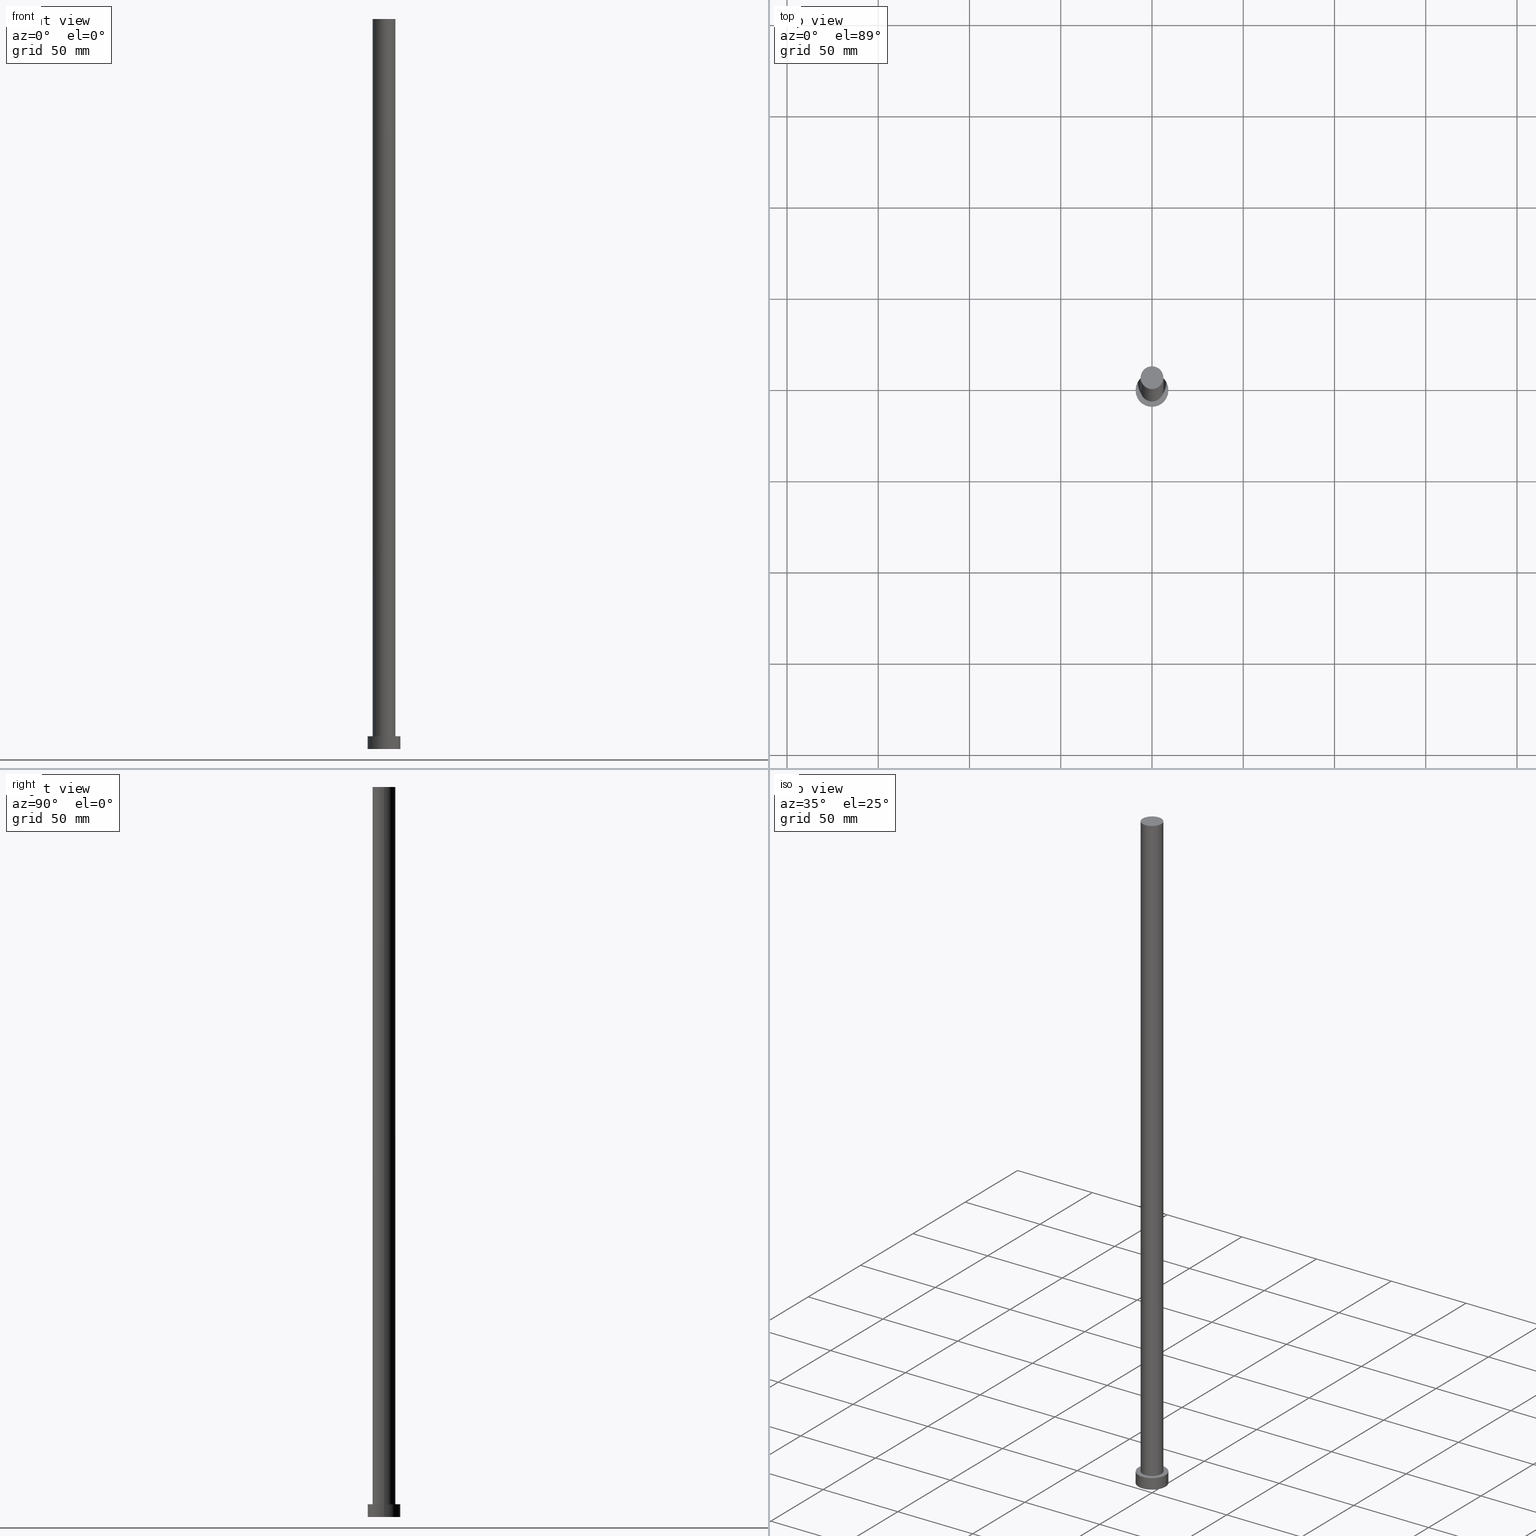
[diagram: canonical four-view strip — front | top / right | iso, engineering-drawing reading convention]
A machine part, canonical four-view strip (front | top / right | iso — engineering-drawing reading convention). The complete STEP part file that produces these views, byte-faithful:
ISO-10303-21;
HEADER;
FILE_DESCRIPTION (( 'STEP AP203' ),
    '1' );
FILE_NAME ('0892.STEP',
    '2023-02-13T11:37:16',
    ( '' ),
    ( '' ),
    'SwSTEP 2.0',
    'SolidWorks 2019',
    '' );
FILE_SCHEMA (( 'CONFIG_CONTROL_DESIGN' ));
ENDSEC;

DATA;
#1 = CARTESIAN_POINT ( 'NONE',  ( 0.000000000000000000, 0.000000000000000000, 400.0000000000000000 ) ) ;
#2 = APPROVAL_ROLE ( '' ) ;
#3 = ADVANCED_FACE ( 'NONE', ( #17 ), #32, .T. ) ;
#4 = VERTEX_POINT ( 'NONE', #13 ) ;
#5 = ORIENTED_EDGE ( 'NONE', *, *, #83, .F. ) ;
#6 = COORDINATED_UNIVERSAL_TIME_OFFSET ( 1, 0, .AHEAD. ) ;
#7 = CIRCLE ( 'NONE', #85, 6.250000000000000000 ) ;
#8 = ORIENTED_EDGE ( 'NONE', *, *, #132, .F. ) ;
#9 = CARTESIAN_POINT ( 'NONE',  ( 0.000000000000000000, 0.000000000000000000, 400.0000000000000000 ) ) ;
#10 = LINE ( 'NONE', #169, #230 ) ;
#11 = VERTEX_POINT ( 'NONE', #220 ) ;
#12 =( LENGTH_UNIT ( ) NAMED_UNIT ( * ) SI_UNIT ( .MILLI., .METRE. ) );
#13 = CARTESIAN_POINT ( 'NONE',  ( 6.250000000000000000, 7.654042494670957606E-16, 400.0000000000000000 ) ) ;
#14 = VECTOR ( 'NONE', #95, 1000.000000000000000 ) ;
#15 = DIRECTION ( 'NONE',  ( 1.000000000000000000, 0.000000000000000000, 0.000000000000000000 ) ) ;
#16 = DIRECTION ( 'NONE',  ( 1.000000000000000000, 0.000000000000000000, 0.000000000000000000 ) ) ;
#17 = FACE_OUTER_BOUND ( 'NONE', #76, .T. ) ;
#18 = AXIS2_PLACEMENT_3D ( 'NONE', #209, #190, #141 ) ;
#19 = COORDINATED_UNIVERSAL_TIME_OFFSET ( 1, 0, .AHEAD. ) ;
#20 =( NAMED_UNIT ( * ) SI_UNIT ( $, .STERADIAN. ) SOLID_ANGLE_UNIT ( ) );
#21 = EDGE_CURVE ( 'NONE', #4, #39, #139, .T. ) ;
#22 = DIRECTION ( 'NONE',  ( 1.000000000000000000, 0.000000000000000000, -0.000000000000000000 ) ) ;
#23 = PERSON ( 'NEUR�EN�', 'NEUR�EN�', 'NEUR�EN�', ('NEUR�EN�'), ('NEUR�EN�'), ('NEUR�EN�') ) ;
#24 = CALENDAR_DATE ( 2023, 13, 2 ) ;
#25 = EDGE_LOOP ( 'NONE', ( #29, #111, #71, #73 ) ) ;
#26 = APPROVAL ( #241, 'NEUR�EN�' ) ;
#27 = PERSON_AND_ORGANIZATION_ROLE ( 'creator' ) ;
#28 = AXIS2_PLACEMENT_3D ( 'NONE', #9, #94, #56 ) ;
#29 = ORIENTED_EDGE ( 'NONE', *, *, #158, .F. ) ;
#30 = DATE_TIME_ROLE ( 'classification_date' ) ;
#31 = AXIS2_PLACEMENT_3D ( 'NONE', #156, #228, #121 ) ;
#32 = PLANE ( 'NONE',  #214 ) ;
#33 = DIRECTION ( 'NONE',  ( 0.000000000000000000, 0.000000000000000000, 1.000000000000000000 ) ) ;
#34 = DIRECTION ( 'NONE',  ( 0.000000000000000000, 0.000000000000000000, 1.000000000000000000 ) ) ;
#35 = CARTESIAN_POINT ( 'NONE',  ( -9.000000000000000000, 0.000000000000000000, 7.000000000000000000 ) ) ;
#36 = DIRECTION ( 'NONE',  ( 0.000000000000000000, 0.000000000000000000, 1.000000000000000000 ) ) ;
#37 = PRODUCT_RELATED_PRODUCT_CATEGORY ( 'detail', '', ( #135 ) ) ;
#38 = AXIS2_PLACEMENT_3D ( 'NONE', #203, #36, #184 ) ;
#39 = VERTEX_POINT ( 'NONE', #137 ) ;
#40 =( NAMED_UNIT ( * ) PLANE_ANGLE_UNIT ( ) SI_UNIT ( $, .RADIAN. ) );
#41 = EDGE_CURVE ( 'NONE', #189, #150, #67, .T. ) ;
#42 = PERSON_AND_ORGANIZATION ( #23, #119 ) ;
#43 = CYLINDRICAL_SURFACE ( 'NONE', #226, 6.250000000000000000 ) ;
#44 = CC_DESIGN_APPROVAL ( #188, ( #151 ) ) ;
#45 = LOCAL_TIME ( 12, 37, 16.00000000000000000, #19 ) ;
#46 = DIRECTION ( 'NONE',  ( 1.000000000000000000, 0.000000000000000000, 0.000000000000000000 ) ) ;
#47 = PLANE ( 'NONE',  #238 ) ;
#48 = CIRCLE ( 'NONE', #133, 6.250000000000000000 ) ;
#49 = ADVANCED_FACE ( 'NONE', ( #96, #254 ), #63, .T. ) ;
#50 = EDGE_LOOP ( 'NONE', ( #113, #60, #199, #245 ) ) ;
#51 = SECURITY_CLASSIFICATION_LEVEL ( 'unclassified' ) ;
#52 = DESIGN_CONTEXT ( 'detailed design', #191, 'design' ) ;
#53 = VECTOR ( 'NONE', #118, 1000.000000000000000 ) ;
#54 = EDGE_LOOP ( 'NONE', ( #8, #201 ) ) ;
#55 = APPROVAL_ROLE ( '' ) ;
#56 = DIRECTION ( 'NONE',  ( 1.000000000000000000, 0.000000000000000000, 0.000000000000000000 ) ) ;
#57 = ADVANCED_FACE ( 'NONE', ( #140 ), #43, .T. ) ;
#58 = ORIENTED_EDGE ( 'NONE', *, *, #88, .T. ) ;
#59 = DIRECTION ( 'NONE',  ( 0.000000000000000000, 0.000000000000000000, 1.000000000000000000 ) ) ;
#60 = ORIENTED_EDGE ( 'NONE', *, *, #61, .T. ) ;
#61 = EDGE_CURVE ( 'NONE', #4, #138, #250, .T. ) ;
#62 = DIRECTION ( 'NONE',  ( -1.000000000000000000, 0.000000000000000000, 0.000000000000000000 ) ) ;
#63 = PLANE ( 'NONE',  #18 ) ;
#64 = AXIS2_PLACEMENT_3D ( 'NONE', #187, #248, #222 ) ;
#65 = DATE_AND_TIME ( #229, #115 ) ;
#66 = CARTESIAN_POINT ( 'NONE',  ( 9.000000000000000000, 1.102182119232617714E-15, 7.000000000000000000 ) ) ;
#67 = CIRCLE ( 'NONE', #38, 9.000000000000000000 ) ;
#68 = ORIENTED_EDGE ( 'NONE', *, *, #21, .T. ) ;
#69 = SHAPE_DEFINITION_REPRESENTATION ( #243, #77 ) ;
#70 = LOCAL_TIME ( 12, 37, 16.00000000000000000, #195 ) ;
#71 = ORIENTED_EDGE ( 'NONE', *, *, #251, .T. ) ;
#72 = APPROVAL_DATE_TIME ( #217, #26 ) ;
#73 = ORIENTED_EDGE ( 'NONE', *, *, #132, .T. ) ;
#74 = CC_DESIGN_DATE_AND_TIME_ASSIGNMENT ( #129, #30, ( #210 ) ) ;
#75 = APPROVAL_PERSON_ORGANIZATION ( #42, #188, #196 ) ;
#76 = EDGE_LOOP ( 'NONE', ( #215, #68 ) ) ;
#77 = ADVANCED_BREP_SHAPE_REPRESENTATION ( '0892', ( #165, #255 ), #163 ) ;
#78 = DIRECTION ( 'NONE',  ( -0.000000000000000000, -0.000000000000000000, -1.000000000000000000 ) ) ;
#79 = LINE ( 'NONE', #35, #14 ) ;
#80 = CYLINDRICAL_SURFACE ( 'NONE', #64, 6.250000000000000000 ) ;
#81 = CARTESIAN_POINT ( 'NONE',  ( 6.250000000000000000, 7.654042494670957606E-16, 400.0000000000000000 ) ) ;
#82 = DIRECTION ( 'NONE',  ( 0.000000000000000000, 0.000000000000000000, 1.000000000000000000 ) ) ;
#83 = EDGE_CURVE ( 'NONE', #39, #4, #99, .T. ) ;
#84 = DIRECTION ( 'NONE',  ( -1.000000000000000000, 0.000000000000000000, 0.000000000000000000 ) ) ;
#85 = AXIS2_PLACEMENT_3D ( 'NONE', #186, #33, #15 ) ;
#86 = PERSON_AND_ORGANIZATION_ROLE ( 'design_owner' ) ;
#87 = DATE_AND_TIME ( #24, #70 ) ;
#88 = EDGE_CURVE ( 'NONE', #177, #11, #90, .T. ) ;
#89 = PERSON_AND_ORGANIZATION ( #23, #119 ) ;
#90 = CIRCLE ( 'NONE', #124, 9.000000000000000000 ) ;
#91 = PERSON_AND_ORGANIZATION ( #23, #119 ) ;
#92 = ORIENTED_EDGE ( 'NONE', *, *, #224, .T. ) ;
#93 = EDGE_LOOP ( 'NONE', ( #109, #239 ) ) ;
#94 = DIRECTION ( 'NONE',  ( 0.000000000000000000, 0.000000000000000000, 1.000000000000000000 ) ) ;
#95 = DIRECTION ( 'NONE',  ( -0.000000000000000000, -0.000000000000000000, -1.000000000000000000 ) ) ;
#96 = FACE_BOUND ( 'NONE', #93, .T. ) ;
#97 = DIRECTION ( 'NONE',  ( -0.000000000000000000, -0.000000000000000000, -1.000000000000000000 ) ) ;
#98 = CARTESIAN_POINT ( 'NONE',  ( -6.250000000000000000, 0.000000000000000000, 7.000000000000000000 ) ) ;
#99 = CIRCLE ( 'NONE', #108, 6.250000000000000000 ) ;
#100 = FACE_OUTER_BOUND ( 'NONE', #117, .T. ) ;
#101 = APPLICATION_PROTOCOL_DEFINITION ( 'international standard', 'config_control_design', 1994, #191 ) ;
#102 = DIRECTION ( 'NONE',  ( -0.000000000000000000, -0.000000000000000000, -1.000000000000000000 ) ) ;
#103 = LOCAL_TIME ( 12, 37, 16.00000000000000000, #180 ) ;
#104 = PERSON_AND_ORGANIZATION_ROLE ( 'classification_officer' ) ;
#105 = PERSON_AND_ORGANIZATION ( #23, #119 ) ;
#106 = CC_DESIGN_PERSON_AND_ORGANIZATION_ASSIGNMENT ( #105, #107, ( #151 ) ) ;
#107 = PERSON_AND_ORGANIZATION_ROLE ( 'design_supplier' ) ;
#108 = AXIS2_PLACEMENT_3D ( 'NONE', #211, #160, #46 ) ;
#109 = ORIENTED_EDGE ( 'NONE', *, *, #224, .F. ) ;
#110 = ADVANCED_FACE ( 'NONE', ( #100 ), #173, .T. ) ;
#111 = ORIENTED_EDGE ( 'NONE', *, *, #41, .F. ) ;
#112 = CARTESIAN_POINT ( 'NONE',  ( 9.000000000000000000, 1.102182119232617714E-15, 0.000000000000000000 ) ) ;
#113 = ORIENTED_EDGE ( 'NONE', *, *, #21, .F. ) ;
#114 = CC_DESIGN_DATE_AND_TIME_ASSIGNMENT ( #87, #237, ( #164 ) ) ;
#115 = LOCAL_TIME ( 12, 37, 16.00000000000000000, #161 ) ;
#116 = CARTESIAN_POINT ( 'NONE',  ( 0.000000000000000000, 0.000000000000000000, 7.000000000000000000 ) ) ;
#117 = EDGE_LOOP ( 'NONE', ( #145, #216, #58, #130 ) ) ;
#118 = DIRECTION ( 'NONE',  ( -0.000000000000000000, -0.000000000000000000, -1.000000000000000000 ) ) ;
#119 = ORGANIZATION ( 'NEUR�EN�', 'NEUR�EN�', '' ) ;
#120 = APPROVAL ( #253, 'NEUR�EN�' ) ;
#121 = DIRECTION ( 'NONE',  ( 1.000000000000000000, 0.000000000000000000, 0.000000000000000000 ) ) ;
#122 = MECHANICAL_CONTEXT ( 'NONE', #236, 'mechanical' ) ;
#123 = CARTESIAN_POINT ( 'NONE',  ( 0.000000000000000000, 0.000000000000000000, 0.000000000000000000 ) ) ;
#124 = AXIS2_PLACEMENT_3D ( 'NONE', #233, #174, #192 ) ;
#125 = CC_DESIGN_SECURITY_CLASSIFICATION ( #210, ( #151 ) ) ;
#126 = DATE_AND_TIME ( #172, #45 ) ;
#127 = CC_DESIGN_PERSON_AND_ORGANIZATION_ASSIGNMENT ( #89, #162, ( #164 ) ) ;
#128 = AXIS2_PLACEMENT_3D ( 'NONE', #116, #225, #136 ) ;
#129 = DATE_AND_TIME ( #240, #103 ) ;
#130 = ORIENTED_EDGE ( 'NONE', *, *, #251, .F. ) ;
#131 = PERSON_AND_ORGANIZATION ( #23, #119 ) ;
#132 = EDGE_CURVE ( 'NONE', #11, #177, #148, .T. ) ;
#133 = AXIS2_PLACEMENT_3D ( 'NONE', #155, #59, #16 ) ;
#134 = APPROVAL_PERSON_ORGANIZATION ( #131, #26, #55 ) ;
#135 = PRODUCT ( '0892', '0892', '', ( #122 ) ) ;
#136 = DIRECTION ( 'NONE',  ( 1.000000000000000000, 0.000000000000000000, 0.000000000000000000 ) ) ;
#137 = CARTESIAN_POINT ( 'NONE',  ( -6.250000000000000000, 0.000000000000000000, 400.0000000000000000 ) ) ;
#138 = VERTEX_POINT ( 'NONE', #231 ) ;
#139 = CIRCLE ( 'NONE', #28, 6.250000000000000000 ) ;
#140 = FACE_OUTER_BOUND ( 'NONE', #50, .T. ) ;
#141 = DIRECTION ( 'NONE',  ( 1.000000000000000000, 0.000000000000000000, -0.000000000000000000 ) ) ;
#142 = VECTOR ( 'NONE', #143, 1000.000000000000000 ) ;
#143 = DIRECTION ( 'NONE',  ( -0.000000000000000000, -0.000000000000000000, -1.000000000000000000 ) ) ;
#144 = PERSON_AND_ORGANIZATION ( #23, #119 ) ;
#145 = ORIENTED_EDGE ( 'NONE', *, *, #247, .F. ) ;
#146 = CC_DESIGN_PERSON_AND_ORGANIZATION_ASSIGNMENT ( #147, #104, ( #210 ) ) ;
#147 = PERSON_AND_ORGANIZATION ( #23, #119 ) ;
#148 = CIRCLE ( 'NONE', #31, 9.000000000000000000 ) ;
#149 = CC_DESIGN_PERSON_AND_ORGANIZATION_ASSIGNMENT ( #91, #27, ( #151 ) ) ;
#150 = VERTEX_POINT ( 'NONE', #66 ) ;
#151 = PRODUCT_DEFINITION_FORMATION_WITH_SPECIFIED_SOURCE ( 'LIBOVOLN�', '', #135, .NOT_KNOWN. ) ;
#152 = DIRECTION ( 'NONE',  ( 1.000000000000000000, 0.000000000000000000, -0.000000000000000000 ) ) ;
#153 = CYLINDRICAL_SURFACE ( 'NONE', #154, 9.000000000000000000 ) ;
#154 = AXIS2_PLACEMENT_3D ( 'NONE', #170, #78, #244 ) ;
#155 = CARTESIAN_POINT ( 'NONE',  ( 0.000000000000000000, 0.000000000000000000, 7.000000000000000000 ) ) ;
#156 = CARTESIAN_POINT ( 'NONE',  ( 0.000000000000000000, 0.000000000000000000, 0.000000000000000000 ) ) ;
#157 = CARTESIAN_POINT ( 'NONE',  ( 0.000000000000000000, 0.000000000000000000, 7.000000000000000000 ) ) ;
#158 = EDGE_CURVE ( 'NONE', #150, #177, #208, .T. ) ;
#159 = APPROVAL_DATE_TIME ( #65, #120 ) ;
#160 = DIRECTION ( 'NONE',  ( 0.000000000000000000, 0.000000000000000000, 1.000000000000000000 ) ) ;
#161 = COORDINATED_UNIVERSAL_TIME_OFFSET ( 1, 0, .AHEAD. ) ;
#162 = PERSON_AND_ORGANIZATION_ROLE ( 'creator' ) ;
#163 =( GEOMETRIC_REPRESENTATION_CONTEXT ( 3 ) GLOBAL_UNCERTAINTY_ASSIGNED_CONTEXT ( ( #221 ) ) GLOBAL_UNIT_ASSIGNED_CONTEXT ( ( #12, #40, #20 ) ) REPRESENTATION_CONTEXT ( 'NONE', 'WORKASPACE' ) );
#164 = PRODUCT_DEFINITION ( 'NEZN�M�', '', #151, #52 ) ;
#165 = MANIFOLD_SOLID_BREP ( 'P�idat vysunut�m3', #246 ) ;
#166 = VERTEX_POINT ( 'NONE', #98 ) ;
#167 = ADVANCED_FACE ( 'NONE', ( #212 ), #47, .F. ) ;
#168 = EDGE_LOOP ( 'NONE', ( #182, #197 ) ) ;
#169 = CARTESIAN_POINT ( 'NONE',  ( -6.250000000000000000, 0.000000000000000000, 400.0000000000000000 ) ) ;
#170 = CARTESIAN_POINT ( 'NONE',  ( 0.000000000000000000, 0.000000000000000000, 7.000000000000000000 ) ) ;
#171 = CARTESIAN_POINT ( 'NONE',  ( 9.000000000000000000, 1.102182119232617714E-15, 7.000000000000000000 ) ) ;
#172 = CALENDAR_DATE ( 2023, 13, 2 ) ;
#173 = CYLINDRICAL_SURFACE ( 'NONE', #185, 9.000000000000000000 ) ;
#174 = DIRECTION ( 'NONE',  ( 0.000000000000000000, 0.000000000000000000, 1.000000000000000000 ) ) ;
#175 = DIRECTION ( 'NONE',  ( 1.000000000000000000, 0.000000000000000000, 0.000000000000000000 ) ) ;
#176 = APPROVAL_PERSON_ORGANIZATION ( #144, #120, #2 ) ;
#177 = VERTEX_POINT ( 'NONE', #112 ) ;
#178 = ADVANCED_FACE ( 'NONE', ( #249 ), #80, .T. ) ;
#179 = CC_DESIGN_APPROVAL ( #120, ( #164 ) ) ;
#180 = COORDINATED_UNIVERSAL_TIME_OFFSET ( 1, 0, .AHEAD. ) ;
#181 = CARTESIAN_POINT ( 'NONE',  ( 0.000000000000000000, 0.000000000000000000, 400.0000000000000000 ) ) ;
#182 = ORIENTED_EDGE ( 'NONE', *, *, #41, .T. ) ;
#183 = ADVANCED_FACE ( 'NONE', ( #207 ), #153, .T. ) ;
#184 = DIRECTION ( 'NONE',  ( 1.000000000000000000, 0.000000000000000000, 0.000000000000000000 ) ) ;
#185 = AXIS2_PLACEMENT_3D ( 'NONE', #157, #252, #62 ) ;
#186 = CARTESIAN_POINT ( 'NONE',  ( 0.000000000000000000, 0.000000000000000000, 7.000000000000000000 ) ) ;
#187 = CARTESIAN_POINT ( 'NONE',  ( 0.000000000000000000, 0.000000000000000000, 400.0000000000000000 ) ) ;
#188 = APPROVAL ( #213, 'NEUR�EN�' ) ;
#189 = VERTEX_POINT ( 'NONE', #204 ) ;
#190 = DIRECTION ( 'NONE',  ( 0.000000000000000000, 0.000000000000000000, 1.000000000000000000 ) ) ;
#191 = APPLICATION_CONTEXT ( 'configuration controlled 3d designs of mechanical parts and assemblies' ) ;
#192 = DIRECTION ( 'NONE',  ( 1.000000000000000000, 0.000000000000000000, 0.000000000000000000 ) ) ;
#193 = CARTESIAN_POINT ( 'NONE',  ( 0.000000000000000000, 0.000000000000000000, 0.000000000000000000 ) ) ;
#194 = DIRECTION ( 'NONE',  ( 0.000000000000000000, 0.000000000000000000, 1.000000000000000000 ) ) ;
#195 = COORDINATED_UNIVERSAL_TIME_OFFSET ( 1, 0, .AHEAD. ) ;
#196 = APPROVAL_ROLE ( '' ) ;
#197 = ORIENTED_EDGE ( 'NONE', *, *, #247, .T. ) ;
#198 = LOCAL_TIME ( 12, 37, 16.00000000000000000, #6 ) ;
#199 = ORIENTED_EDGE ( 'NONE', *, *, #205, .T. ) ;
#200 = CALENDAR_DATE ( 2023, 13, 2 ) ;
#201 = ORIENTED_EDGE ( 'NONE', *, *, #88, .F. ) ;
#202 = CC_DESIGN_PERSON_AND_ORGANIZATION_ASSIGNMENT ( #232, #86, ( #135 ) ) ;
#203 = CARTESIAN_POINT ( 'NONE',  ( 0.000000000000000000, 0.000000000000000000, 7.000000000000000000 ) ) ;
#204 = CARTESIAN_POINT ( 'NONE',  ( -9.000000000000000000, 0.000000000000000000, 7.000000000000000000 ) ) ;
#205 = EDGE_CURVE ( 'NONE', #138, #166, #7, .T. ) ;
#206 = ORIENTED_EDGE ( 'NONE', *, *, #234, .T. ) ;
#207 = FACE_OUTER_BOUND ( 'NONE', #25, .T. ) ;
#208 = LINE ( 'NONE', #171, #142 ) ;
#209 = CARTESIAN_POINT ( 'NONE',  ( 0.000000000000000000, 0.000000000000000000, 7.000000000000000000 ) ) ;
#210 = SECURITY_CLASSIFICATION ( '', '', #51 ) ;
#211 = CARTESIAN_POINT ( 'NONE',  ( 0.000000000000000000, 0.000000000000000000, 400.0000000000000000 ) ) ;
#212 = FACE_OUTER_BOUND ( 'NONE', #54, .T. ) ;
#213 = APPROVAL_STATUS ( 'not_yet_approved' ) ;
#214 = AXIS2_PLACEMENT_3D ( 'NONE', #181, #34, #152 ) ;
#215 = ORIENTED_EDGE ( 'NONE', *, *, #83, .T. ) ;
#216 = ORIENTED_EDGE ( 'NONE', *, *, #158, .T. ) ;
#217 = DATE_AND_TIME ( #200, #198 ) ;
#218 = APPROVAL_DATE_TIME ( #126, #188 ) ;
#219 = CIRCLE ( 'NONE', #128, 9.000000000000000000 ) ;
#220 = CARTESIAN_POINT ( 'NONE',  ( -9.000000000000000000, 0.000000000000000000, 0.000000000000000000 ) ) ;
#221 = UNCERTAINTY_MEASURE_WITH_UNIT (LENGTH_MEASURE( 1.000000000000000082E-05 ), #12, 'distance_accuracy_value', 'NONE');
#222 = DIRECTION ( 'NONE',  ( -1.000000000000000000, 0.000000000000000000, 0.000000000000000000 ) ) ;
#223 = EDGE_LOOP ( 'NONE', ( #242, #5, #206, #92 ) ) ;
#224 = EDGE_CURVE ( 'NONE', #166, #138, #48, .T. ) ;
#225 = DIRECTION ( 'NONE',  ( 0.000000000000000000, 0.000000000000000000, 1.000000000000000000 ) ) ;
#226 = AXIS2_PLACEMENT_3D ( 'NONE', #1, #102, #84 ) ;
#227 = CC_DESIGN_APPROVAL ( #26, ( #210 ) ) ;
#228 = DIRECTION ( 'NONE',  ( 0.000000000000000000, 0.000000000000000000, 1.000000000000000000 ) ) ;
#229 = CALENDAR_DATE ( 2023, 13, 2 ) ;
#230 = VECTOR ( 'NONE', #97, 1000.000000000000000 ) ;
#231 = CARTESIAN_POINT ( 'NONE',  ( 6.250000000000000000, 7.654042494670957606E-16, 7.000000000000000000 ) ) ;
#232 = PERSON_AND_ORGANIZATION ( #23, #119 ) ;
#233 = CARTESIAN_POINT ( 'NONE',  ( 0.000000000000000000, 0.000000000000000000, 0.000000000000000000 ) ) ;
#234 = EDGE_CURVE ( 'NONE', #39, #166, #10, .T. ) ;
#235 = APPLICATION_PROTOCOL_DEFINITION ( 'international standard', 'config_control_design', 1994, #236 ) ;
#236 = APPLICATION_CONTEXT ( 'configuration controlled 3d designs of mechanical parts and assemblies' ) ;
#237 = DATE_TIME_ROLE ( 'creation_date' ) ;
#238 = AXIS2_PLACEMENT_3D ( 'NONE', #123, #194, #22 ) ;
#239 = ORIENTED_EDGE ( 'NONE', *, *, #205, .F. ) ;
#240 = CALENDAR_DATE ( 2023, 13, 2 ) ;
#241 = APPROVAL_STATUS ( 'not_yet_approved' ) ;
#242 = ORIENTED_EDGE ( 'NONE', *, *, #61, .F. ) ;
#243 = PRODUCT_DEFINITION_SHAPE ( 'NONE', 'NONE',  #164 ) ;
#244 = DIRECTION ( 'NONE',  ( -1.000000000000000000, 0.000000000000000000, 0.000000000000000000 ) ) ;
#245 = ORIENTED_EDGE ( 'NONE', *, *, #234, .F. ) ;
#246 = CLOSED_SHELL ( 'NONE', ( #57, #110, #183, #49, #167, #178, #3 ) ) ;
#247 = EDGE_CURVE ( 'NONE', #150, #189, #219, .T. ) ;
#248 = DIRECTION ( 'NONE',  ( -0.000000000000000000, -0.000000000000000000, -1.000000000000000000 ) ) ;
#249 = FACE_OUTER_BOUND ( 'NONE', #223, .T. ) ;
#250 = LINE ( 'NONE', #81, #53 ) ;
#251 = EDGE_CURVE ( 'NONE', #189, #11, #79, .T. ) ;
#252 = DIRECTION ( 'NONE',  ( -0.000000000000000000, -0.000000000000000000, -1.000000000000000000 ) ) ;
#253 = APPROVAL_STATUS ( 'not_yet_approved' ) ;
#254 = FACE_OUTER_BOUND ( 'NONE', #168, .T. ) ;
#255 = AXIS2_PLACEMENT_3D ( 'NONE', #193, #82, #175 ) ;
ENDSEC;
END-ISO-10303-21;
